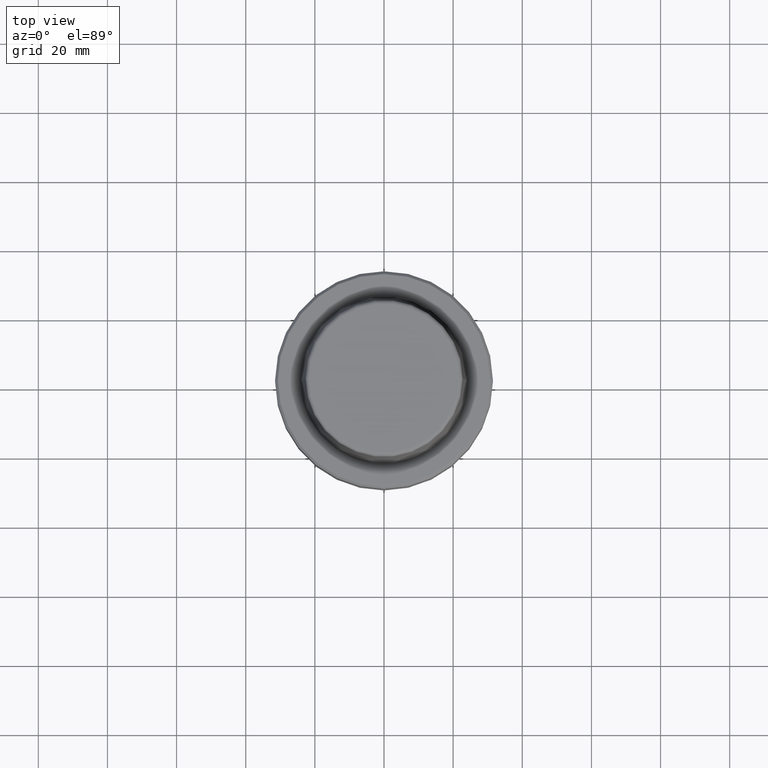
[diagram: clean part render]
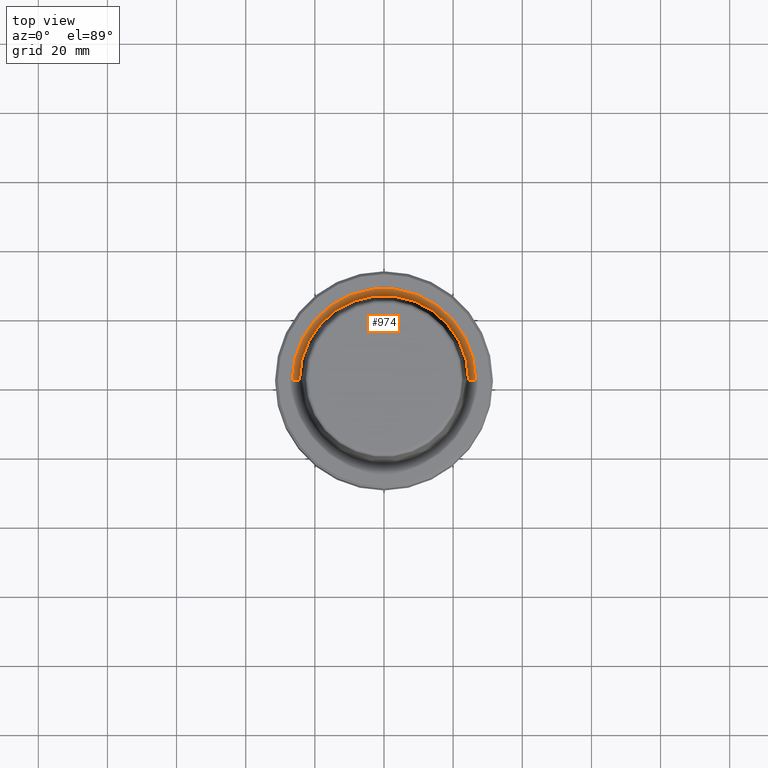
[diagram: same view with one face highlighted and labeled with its STEP entity id]
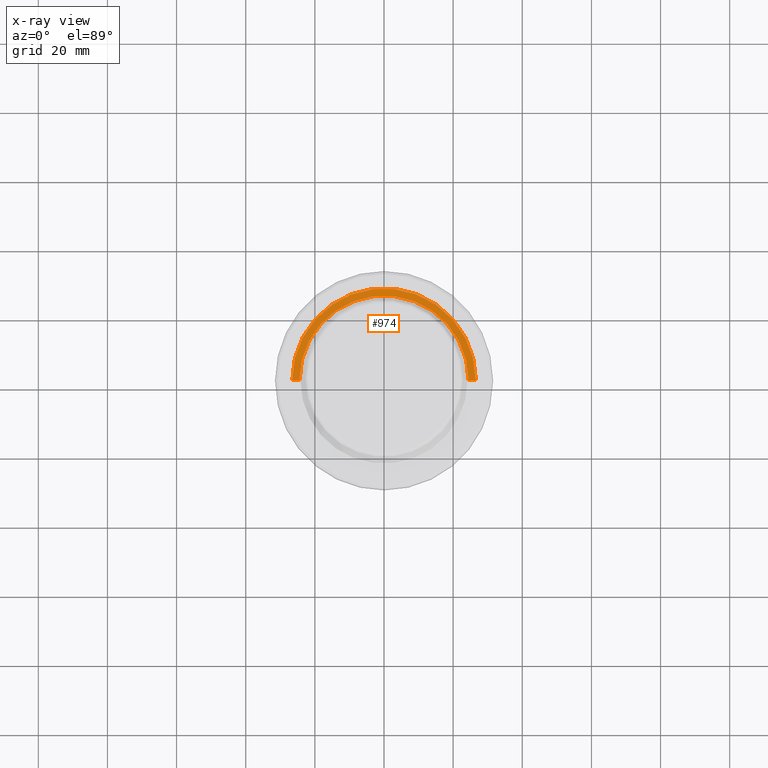
[diagram: x-ray of the same camera — body ghosted, the highlighted face saturated]
A machine part, top view. The second image highlights one B-rep face of the part: STEP entity #974.
The next image is the same camera in x-ray: the body ghosted, the highlighted face saturated — about 0% of this face is hidden behind the body in this view.
In plain terms, the highlighted conical surface has half-angle 80 deg.
Its self-contained STEP definition (entity closure, byte-faithful):
#1 = AXIS2_PLACEMENT_3D ( 'NONE', #498, #229, #99 ) ;
#9 = AXIS2_PLACEMENT_3D ( 'NONE', #464, #1149, #558 ) ;
#63 = CIRCLE ( 'NONE', #9, 26.52499999999999900 ) ;
#83 = LINE ( 'NONE', #957, #195 ) ;
#99 = DIRECTION ( 'NONE',  ( 1.000000000000000000, 0.0000000000000000000, 0.0000000000000000000 ) ) ;
#114 = EDGE_CURVE ( 'NONE', #1099, #687, #887, .T. ) ;
#143 = LINE ( 'NONE', #1035, #173 ) ;
#167 = ORIENTED_EDGE ( 'NONE', *, *, #114, .F. ) ;
#173 = VECTOR ( 'NONE', #544, 1000.000000000000200 ) ;
#189 = CARTESIAN_POINT ( 'NONE',  ( -24.47682408883346700, 3.122961031053313900E-015, -0.3611486743758107700 ) ) ;
#195 = VECTOR ( 'NONE', #985, 1000.000000000000200 ) ;
#207 = EDGE_CURVE ( 'NONE', #687, #970, #83, .T. ) ;
#229 = DIRECTION ( 'NONE',  ( -0.0000000000000000000, -0.0000000000000000000, 1.000000000000000000 ) ) ;
#232 = CARTESIAN_POINT ( 'NONE',  ( 26.52499999999999900, 0.0000000000000000000, 0.0000000000000000000 ) ) ;
#246 = CARTESIAN_POINT ( 'NONE',  ( 0.0000000000000000000, 0.0000000000000000000, 0.0000000000000000000 ) ) ;
#272 = VERTEX_POINT ( 'NONE', #232 ) ;
#442 = CARTESIAN_POINT ( 'NONE',  ( -26.52499999999999900, 3.248375634738354300E-015, 0.0000000000000000000 ) ) ;
#464 = CARTESIAN_POINT ( 'NONE',  ( 0.0000000000000000000, 0.0000000000000000000, 0.0000000000000000000 ) ) ;
#498 = CARTESIAN_POINT ( 'NONE',  ( 0.0000000000000000000, 0.0000000000000000000, -0.3611486743758107700 ) ) ;
#526 = ORIENTED_EDGE ( 'NONE', *, *, #1073, .T. ) ;
#534 = DIRECTION ( 'NONE',  ( 1.000000000000000000, 0.0000000000000000000, 0.0000000000000000000 ) ) ;
#538 = AXIS2_PLACEMENT_3D ( 'NONE', #246, #627, #534 ) ;
#544 = DIRECTION ( 'NONE',  ( 0.9848077530122074700, 0.0000000000000000000, 0.1736481776669334700 ) ) ;
#556 = ORIENTED_EDGE ( 'NONE', *, *, #207, .F. ) ;
#558 = DIRECTION ( 'NONE',  ( 1.000000000000000000, 0.0000000000000000000, 0.0000000000000000000 ) ) ;
#627 = DIRECTION ( 'NONE',  ( -0.0000000000000000000, -0.0000000000000000000, 1.000000000000000000 ) ) ;
#687 = VERTEX_POINT ( 'NONE', #189 ) ;
#887 = CIRCLE ( 'NONE', #1, 24.47682408883346700 ) ;
#919 = CONICAL_SURFACE ( 'NONE', #538, 26.52499999999999900, 1.396263401595460500 ) ;
#948 = FACE_OUTER_BOUND ( 'NONE', #1230, .T. ) ;
#957 = CARTESIAN_POINT ( 'NONE',  ( -26.52499999999999900, 3.248375634738354300E-015, 0.0000000000000000000 ) ) ;
#970 = VERTEX_POINT ( 'NONE', #442 ) ;
#974 = ADVANCED_FACE ( 'NONE', ( #948 ), #919, .F. ) ;
#985 = DIRECTION ( 'NONE',  ( -0.9848077530122074700, 1.206041662501897100E-016, 0.1736481776669334700 ) ) ;
#1012 = ORIENTED_EDGE ( 'NONE', *, *, #1117, .T. ) ;
#1035 = CARTESIAN_POINT ( 'NONE',  ( 26.52499999999999900, 0.0000000000000000000, 0.0000000000000000000 ) ) ;
#1073 = EDGE_CURVE ( 'NONE', #1099, #272, #143, .T. ) ;
#1099 = VERTEX_POINT ( 'NONE', #1145 ) ;
#1117 = EDGE_CURVE ( 'NONE', #272, #970, #63, .T. ) ;
#1145 = CARTESIAN_POINT ( 'NONE',  ( 24.47682408883346700, 0.0000000000000000000, -0.3611486743758107700 ) ) ;
#1149 = DIRECTION ( 'NONE',  ( -0.0000000000000000000, -0.0000000000000000000, 1.000000000000000000 ) ) ;
#1230 = EDGE_LOOP ( 'NONE', ( #556, #167, #526, #1012 ) ) ;